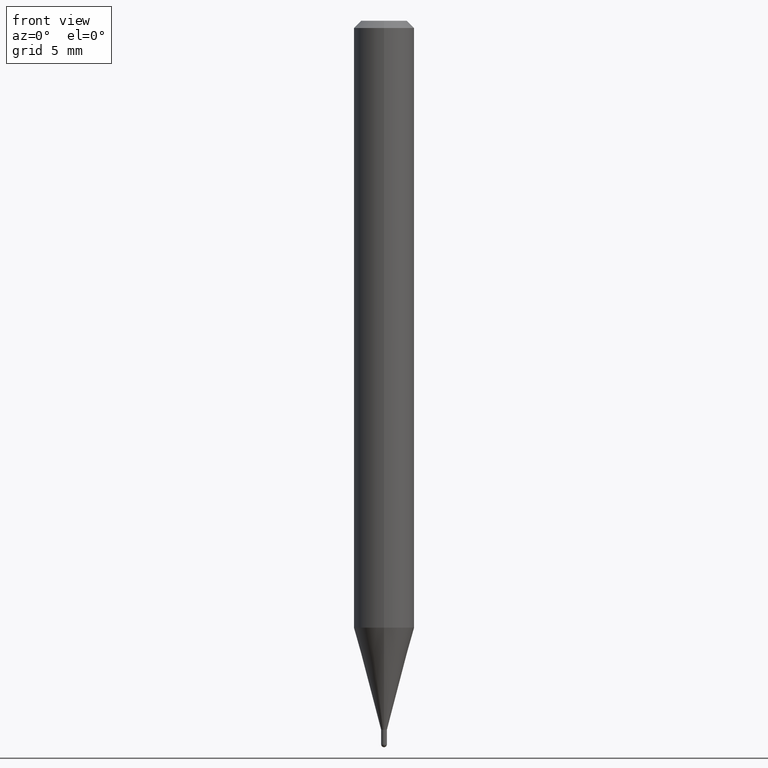
[diagram: clean part render]
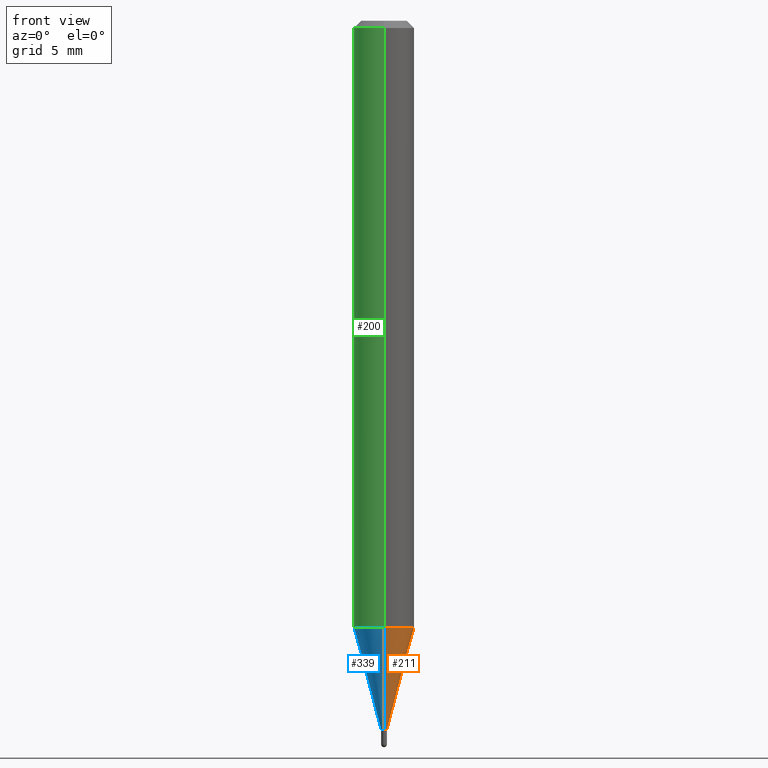
[diagram: same view with three faces highlighted in distinct colors, each labeled with its STEP entity id]
A machine part, front view with three faces highlighted in distinct colors.
Their STEP definitions:

[orange] entity #211 — the highlighted conical surface has half-angle 15 deg.
#2 = CONICAL_SURFACE ( 'NONE', #358, 0.005999999999999923797, 0.2617993877991573459 ) ;
#6 = FACE_OUTER_BOUND ( 'NONE', #283, .T. ) ;
#13 = DIRECTION ( 'NONE',  ( 1.839019923739648830E-15, 0.2588190451025317862, 0.9659258262890653146 ) ) ;
#14 = VERTEX_POINT ( 'NONE', #230 ) ;
#27 = EDGE_CURVE ( 'NONE', #14, #507, #262, .T. ) ;
#54 = ORIENTED_EDGE ( 'NONE', *, *, #205, .F. ) ;
#78 = LINE ( 'NONE', #241, #250 ) ;
#81 = ORIENTED_EDGE ( 'NONE', *, *, #27, .F. ) ;
#95 = DIRECTION ( 'NONE',  ( -2.445456695284808407E-29, 3.491498682341725193E-15, 1.000000000000000000 ) ) ;
#107 = AXIS2_PLACEMENT_3D ( 'NONE', #459, #95, #377 ) ;
#158 = DIRECTION ( 'NONE',  ( -6.982962677686265922E-15, -1.000000000000000000, 0.000000000000000000 ) ) ;
#159 = VECTOR ( 'NONE', #13, 39.37007874015748143 ) ;
#161 = LINE ( 'NONE', #481, #159 ) ;
#197 = DIRECTION ( 'NONE',  ( -2.445456695284808407E-29, 3.491498682341725193E-15, 1.000000000000000000 ) ) ;
#205 = EDGE_CURVE ( 'NONE', #491, #14, #78, .T. ) ;
#211 = ADVANCED_FACE ( 'NONE', ( #6 ), #2, .T. ) ;
#230 = CARTESIAN_POINT ( 'NONE',  ( -4.364351673553611010E-16, -0.06250000000000438538, -1.253139129372364824 ) ) ;
#241 = CARTESIAN_POINT ( 'NONE',  ( -4.189777606608125867E-17, -0.006000000000005035160, -1.464000000000000190 ) ) ;
#250 = VECTOR ( 'NONE', #398, 39.37007874015748854 ) ;
#251 = EDGE_CURVE ( 'NONE', #338, #507, #161, .T. ) ;
#262 = CIRCLE ( 'NONE', #281, 0.06250000000000000000 ) ;
#269 = ORIENTED_EDGE ( 'NONE', *, *, #378, .T. ) ;
#281 = AXIS2_PLACEMENT_3D ( 'NONE', #424, #321, #391 ) ;
#283 = EDGE_LOOP ( 'NONE', ( #269, #331, #81, #54 ) ) ;
#309 = CARTESIAN_POINT ( 'NONE',  ( 2.433608869978673661E-16, 0.005999999999994812434, -1.464000000000000190 ) ) ;
#321 = DIRECTION ( 'NONE',  ( -2.445456695284808407E-29, 3.491498682341725193E-15, 1.000000000000000000 ) ) ;
#331 = ORIENTED_EDGE ( 'NONE', *, *, #251, .T. ) ;
#338 = VERTEX_POINT ( 'NONE', #309 ) ;
#350 = CARTESIAN_POINT ( 'NONE',  ( 4.440892098500930859E-16, 0.06249999999999561462, -1.253139129372365490 ) ) ;
#356 = CIRCLE ( 'NONE', #107, 0.005999999999999923797 ) ;
#358 = AXIS2_PLACEMENT_3D ( 'NONE', #366, #197, #158 ) ;
#366 = CARTESIAN_POINT ( 'NONE',  ( 3.580148601896960376E-29, -5.111554070948286597E-15, -1.464000000000000190 ) ) ;
#377 = DIRECTION ( 'NONE',  ( -6.982962677686265922E-15, -1.000000000000000000, 0.000000000000000000 ) ) ;
#378 = EDGE_CURVE ( 'NONE', #491, #338, #356, .T. ) ;
#391 = DIRECTION ( 'NONE',  ( -6.982962677686265922E-15, -1.000000000000000000, 4.370956789862821150E-15 ) ) ;
#398 = DIRECTION ( 'NONE',  ( -1.807323732225377865E-15, -0.2588190451025250138, 0.9659258262890670910 ) ) ;
#424 = CARTESIAN_POINT ( 'NONE',  ( 3.064497474047025979E-29, -4.375333618994468371E-15, -1.253139129372365046 ) ) ;
#459 = CARTESIAN_POINT ( 'NONE',  ( 3.580148601896960376E-29, -5.111554070948286597E-15, -1.464000000000000190 ) ) ;
#481 = CARTESIAN_POINT ( 'NONE',  ( 4.263256414564127042E-17, 0.005999999999994812434, -1.464000000000000190 ) ) ;
#491 = VERTEX_POINT ( 'NONE', #510 ) ;
#507 = VERTEX_POINT ( 'NONE', #350 ) ;
#510 = CARTESIAN_POINT ( 'NONE',  ( -4.189777606608125867E-17, -0.006000000000005035160, -1.464000000000000190 ) ) ;

[blue] entity #339 — the highlighted conical surface has half-angle 15 deg.
#4 = CARTESIAN_POINT ( 'NONE',  ( 3.064497474047025979E-29, -4.375333618994468371E-15, -1.253139129372365046 ) ) ;
#9 = CIRCLE ( 'NONE', #363, 0.005999999999999923797 ) ;
#10 = ORIENTED_EDGE ( 'NONE', *, *, #205, .T. ) ;
#13 = DIRECTION ( 'NONE',  ( 1.839019923739648830E-15, 0.2588190451025317862, 0.9659258262890653146 ) ) ;
#14 = VERTEX_POINT ( 'NONE', #230 ) ;
#64 = FACE_OUTER_BOUND ( 'NONE', #456, .T. ) ;
#71 = CARTESIAN_POINT ( 'NONE',  ( 3.580148601896960376E-29, -5.111554070948286597E-15, -1.464000000000000190 ) ) ;
#78 = LINE ( 'NONE', #241, #250 ) ;
#134 = EDGE_CURVE ( 'NONE', #507, #14, #314, .T. ) ;
#159 = VECTOR ( 'NONE', #13, 39.37007874015748143 ) ;
#161 = LINE ( 'NONE', #481, #159 ) ;
#169 = AXIS2_PLACEMENT_3D ( 'NONE', #221, #344, #452 ) ;
#173 = ORIENTED_EDGE ( 'NONE', *, *, #134, .F. ) ;
#202 = CONICAL_SURFACE ( 'NONE', #169, 0.005999999999999923797, 0.2617993877991573459 ) ;
#205 = EDGE_CURVE ( 'NONE', #491, #14, #78, .T. ) ;
#221 = CARTESIAN_POINT ( 'NONE',  ( 3.580148601896960376E-29, -5.111554070948286597E-15, -1.464000000000000190 ) ) ;
#228 = DIRECTION ( 'NONE',  ( -6.982962677686265922E-15, -1.000000000000000000, 0.000000000000000000 ) ) ;
#230 = CARTESIAN_POINT ( 'NONE',  ( -4.364351673553611010E-16, -0.06250000000000438538, -1.253139129372364824 ) ) ;
#232 = DIRECTION ( 'NONE',  ( -2.445456695284808407E-29, 3.491498682341725193E-15, 1.000000000000000000 ) ) ;
#241 = CARTESIAN_POINT ( 'NONE',  ( -4.189777606608125867E-17, -0.006000000000005035160, -1.464000000000000190 ) ) ;
#250 = VECTOR ( 'NONE', #398, 39.37007874015748854 ) ;
#251 = EDGE_CURVE ( 'NONE', #338, #507, #161, .T. ) ;
#263 = ORIENTED_EDGE ( 'NONE', *, *, #251, .F. ) ;
#309 = CARTESIAN_POINT ( 'NONE',  ( 2.433608869978673661E-16, 0.005999999999994812434, -1.464000000000000190 ) ) ;
#314 = CIRCLE ( 'NONE', #365, 0.06250000000000000000 ) ;
#327 = DIRECTION ( 'NONE',  ( -2.445456695284808407E-29, 3.491498682341725193E-15, 1.000000000000000000 ) ) ;
#338 = VERTEX_POINT ( 'NONE', #309 ) ;
#339 = ADVANCED_FACE ( 'NONE', ( #64 ), #202, .T. ) ;
#344 = DIRECTION ( 'NONE',  ( -2.445456695284808407E-29, 3.491498682341725193E-15, 1.000000000000000000 ) ) ;
#350 = CARTESIAN_POINT ( 'NONE',  ( 4.440892098500930859E-16, 0.06249999999999561462, -1.253139129372365490 ) ) ;
#363 = AXIS2_PLACEMENT_3D ( 'NONE', #71, #232, #228 ) ;
#365 = AXIS2_PLACEMENT_3D ( 'NONE', #4, #327, #475 ) ;
#398 = DIRECTION ( 'NONE',  ( -1.807323732225377865E-15, -0.2588190451025250138, 0.9659258262890670910 ) ) ;
#404 = ORIENTED_EDGE ( 'NONE', *, *, #468, .T. ) ;
#452 = DIRECTION ( 'NONE',  ( -6.982962677686265922E-15, -1.000000000000000000, 0.000000000000000000 ) ) ;
#456 = EDGE_LOOP ( 'NONE', ( #263, #404, #10, #173 ) ) ;
#468 = EDGE_CURVE ( 'NONE', #338, #491, #9, .T. ) ;
#475 = DIRECTION ( 'NONE',  ( -6.982962677686265922E-15, -1.000000000000000000, 4.370956789862821150E-15 ) ) ;
#481 = CARTESIAN_POINT ( 'NONE',  ( 4.263256414564127042E-17, 0.005999999999994812434, -1.464000000000000190 ) ) ;
#491 = VERTEX_POINT ( 'NONE', #510 ) ;
#507 = VERTEX_POINT ( 'NONE', #350 ) ;
#510 = CARTESIAN_POINT ( 'NONE',  ( -4.189777606608125867E-17, -0.006000000000005035160, -1.464000000000000190 ) ) ;

[green] entity #200 — the highlighted cylindrical surface (edge-blend (fillet) strip) has radius 1.5875 mm, axis along (-0, 0, 1).
#4 = CARTESIAN_POINT ( 'NONE',  ( 3.064497474047025979E-29, -4.375333618994468371E-15, -1.253139129372365046 ) ) ;
#14 = VERTEX_POINT ( 'NONE', #230 ) ;
#34 = DIRECTION ( 'NONE',  ( -6.982962677686265922E-15, -1.000000000000000000, 3.483106191921935554E-15 ) ) ;
#36 = CARTESIAN_POINT ( 'NONE',  ( 3.668185042927215431E-31, -5.237248023512590131E-17, -0.01500000000000000812 ) ) ;
#37 = LINE ( 'NONE', #421, #389 ) ;
#41 = DIRECTION ( 'NONE',  ( -6.982962677686265922E-15, -1.000000000000000000, 3.491498682341725193E-15 ) ) ;
#46 = EDGE_CURVE ( 'NONE', #507, #50, #37, .T. ) ;
#50 = VERTEX_POINT ( 'NONE', #77 ) ;
#63 = ORIENTED_EDGE ( 'NONE', *, *, #440, .F. ) ;
#73 = EDGE_LOOP ( 'NONE', ( #499, #119, #253, #63 ) ) ;
#77 = CARTESIAN_POINT ( 'NONE',  ( 4.440892098500933817E-16, 0.06249999999999995143, -0.01500000000000022669 ) ) ;
#111 = DIRECTION ( 'NONE',  ( -2.445456695284808407E-29, 3.491498682341725193E-15, 1.000000000000000000 ) ) ;
#119 = ORIENTED_EDGE ( 'NONE', *, *, #134, .T. ) ;
#124 = VERTEX_POINT ( 'NONE', #198 ) ;
#134 = EDGE_CURVE ( 'NONE', #507, #14, #314, .T. ) ;
#137 = DIRECTION ( 'NONE',  ( -2.445456695284808688E-29, 3.491498682341725193E-15, 1.000000000000000000 ) ) ;
#153 = AXIS2_PLACEMENT_3D ( 'NONE', #36, #111, #34 ) ;
#165 = DIRECTION ( 'NONE',  ( -2.445456695284808407E-29, 3.491498682341725193E-15, 1.000000000000000000 ) ) ;
#198 = CARTESIAN_POINT ( 'NONE',  ( -4.364351673553912750E-16, -0.06250000000000005551, -0.01499999999999979128 ) ) ;
#200 = ADVANCED_FACE ( 'NONE', ( #204 ), #209, .T. ) ;
#204 = FACE_OUTER_BOUND ( 'NONE', #73, .T. ) ;
#209 = CYLINDRICAL_SURFACE ( 'NONE', #446, 0.06250000000000000000 ) ;
#230 = CARTESIAN_POINT ( 'NONE',  ( -4.364351673553611010E-16, -0.06250000000000438538, -1.253139129372364824 ) ) ;
#253 = ORIENTED_EDGE ( 'NONE', *, *, #425, .T. ) ;
#260 = VECTOR ( 'NONE', #137, 39.37007874015748143 ) ;
#272 = CIRCLE ( 'NONE', #153, 0.06250000000000000000 ) ;
#293 = CARTESIAN_POINT ( 'NONE',  ( 0.000000000000000000, 0.000000000000000000, 0.000000000000000000 ) ) ;
#314 = CIRCLE ( 'NONE', #365, 0.06250000000000000000 ) ;
#327 = DIRECTION ( 'NONE',  ( -2.445456695284808407E-29, 3.491498682341725193E-15, 1.000000000000000000 ) ) ;
#342 = CARTESIAN_POINT ( 'NONE',  ( -4.364351673553916201E-16, -0.06250000000000000000, 2.182186676463578245E-16 ) ) ;
#350 = CARTESIAN_POINT ( 'NONE',  ( 4.440892098500930859E-16, 0.06249999999999561462, -1.253139129372365490 ) ) ;
#365 = AXIS2_PLACEMENT_3D ( 'NONE', #4, #327, #475 ) ;
#389 = VECTOR ( 'NONE', #511, 39.37007874015748143 ) ;
#421 = CARTESIAN_POINT ( 'NONE',  ( 4.440892098500625669E-16, 0.06250000000000000000, -2.182186676463578245E-16 ) ) ;
#425 = EDGE_CURVE ( 'NONE', #14, #124, #490, .T. ) ;
#440 = EDGE_CURVE ( 'NONE', #50, #124, #272, .T. ) ;
#446 = AXIS2_PLACEMENT_3D ( 'NONE', #293, #165, #41 ) ;
#475 = DIRECTION ( 'NONE',  ( -6.982962677686265922E-15, -1.000000000000000000, 4.370956789862821150E-15 ) ) ;
#490 = LINE ( 'NONE', #342, #260 ) ;
#499 = ORIENTED_EDGE ( 'NONE', *, *, #46, .F. ) ;
#507 = VERTEX_POINT ( 'NONE', #350 ) ;
#511 = DIRECTION ( 'NONE',  ( -2.445456695284808688E-29, 3.491498682341725193E-15, 1.000000000000000000 ) ) ;